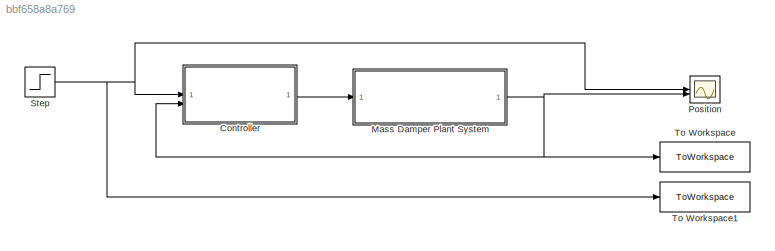
MODEL slx_bbf658a8a769
KIND model
CONFIG AbsTol = auto
CONFIG EnableMultiTasking = off
CONFIG FixedStep = auto
CONFIG MaxStep = 0.01
CONFIG MinStep = auto
CONFIG RelTol = 1e-3
CONFIG SampleTimeConstraint = Unconstrained
CONFIG SolverName = VariableStepAuto
CONFIG StartTime = 0.0
CONFIG StopTime = 10
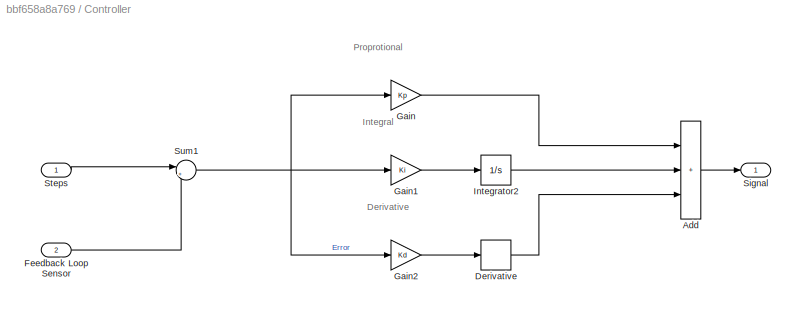
BLOCK [SubSystem] Controller
BLOCK [Sum] Controller/Add
  IconShape = rectangular
  Inputs = +++
BLOCK [Derivative] Controller/Derivative
BLOCK [Inport] Controller/Feedback Loop Sensor
  Port = 2
BLOCK [Gain] Controller/Gain
  Gain = Kp
BLOCK [Gain] Controller/Gain1
  Gain = Ki
BLOCK [Gain] Controller/Gain2
  Gain = Kd
BLOCK [Integrator] Controller/Integrator2
BLOCK [Outport] Controller/Signal
BLOCK [Inport] Controller/Steps
BLOCK [Sum] Controller/Sum1
  Inputs = |+-
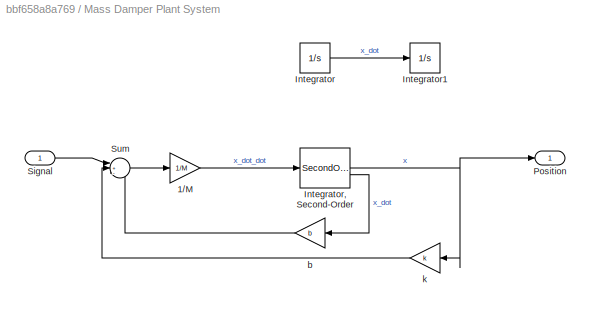
BLOCK [SubSystem] Mass Damper Plant System
BLOCK [Gain] Mass Damper Plant System/1//M
  Gain = 1/M
BLOCK [Integrator] Mass Damper Plant System/Integrator
BLOCK [SecondOrderIntegrator] Mass Damper Plant System/Integrator, Second-Order
BLOCK [Integrator] Mass Damper Plant System/Integrator1
BLOCK [Outport] Mass Damper Plant System/Position
BLOCK [Inport] Mass Damper Plant System/Signal
BLOCK [Sum] Mass Damper Plant System/Sum
  Inputs = |+--
BLOCK [Gain] Mass Damper Plant System/b
  Gain = b
  NameLocation = top
BLOCK [Gain] Mass Damper Plant System/k
  Gain = k
  NameLocation = top
BLOCK [Scope] Position
  ActiveDisplayYMaximum = 12.309637431082237
  ActiveDisplayYMinimum = -2.1778919651832895
  Floating = off
  GraphicalSettings = {"Style":{"BackgroundColor":[0.12941176470588237,0.12941176470588237,0.12941176470588237],"AxesColor":[0.07058823529411765,0.07058823529411765,0.07058823529411765],"LabelsColor":[0.8509803921568627,0.8509803921568627,0.8509803921568627],"PreserveColors":false,"Visible":[true,true],"LineStyle":["-","-"],"LineWidth":[1.5,1.5],"BarWidth":[0.9,0.9],"LineColor":["auto","auto"],"LineFaceAlpha":[1,1],"Li...<+2140ch>
  MultipleDisplayCache = [{"MaxYLimMag":11.826554609196346,"MaxYLimReal":12.309637431082237,"MinYLimMag":0,"MinYLimReal":-2.1778919651832895,"PlotAsMagnitudePhase":false,"ShowGrid":true,"ShowLegend":true,"Title":"%<SignalLabel>","YLabel":""}]
  NumInputPorts = 2
  ScopeFrameLocation = window
  ShowLegend = on
  WasSavedAsWebScope = on
  WindowPosition = [1.000000,-460.000000,1920.000000,1008.000000,]
BLOCK [Step] Step
  After = 10
  SampleTime = 0
BLOCK [ToWorkspace] To Workspace
  FixptAsFi = on
  MaxDataPoints = inf
  SampleTime = -1
  SaveFormat = Timeseries
  VariableName = IN
BLOCK [ToWorkspace] To Workspace1
  FixptAsFi = on
  MaxDataPoints = inf
  SampleTime = -1
  SaveFormat = Timeseries
  VariableName = OUT
ANNOTATION Controller: Derivative
ANNOTATION Controller: Integral
ANNOTATION Controller: Proprotional
LINE Controller/Add:1 -> Controller/Signal:1
LINE Controller/Derivative:1 -> Controller/Add:3
LINE Controller/Feedback Loop Sensor:1 -> Controller/Sum1:2
LINE Controller/Gain1:1 -> Controller/Integrator2:1
LINE Controller/Gain2:1 -> Controller/Derivative:1
LINE Controller/Gain:1 -> Controller/Add:1
LINE Controller/Integrator2:1 -> Controller/Add:2
LINE Controller/Steps:1 -> Controller/Sum1:1
NET Controller/Sum1:1 -> Controller/Gain1:1, Controller/Gain2:1, Controller/Gain:1
LINE Controller:1 -> Mass Damper Plant System:1
LINE Mass Damper Plant System/1//M:1 -> Mass Damper Plant System/Integrator, Second-Order:1
NET Mass Damper Plant System/Integrator, Second-Order:1 -> Mass Damper Plant System/Position:1, Mass Damper Plant System/k:1
LINE Mass Damper Plant System/Integrator, Second-Order:2 -> Mass Damper Plant System/b:1
LINE Mass Damper Plant System/Integrator:1 -> Mass Damper Plant System/Integrator1:1
LINE Mass Damper Plant System/Signal:1 -> Mass Damper Plant System/Sum:1
LINE Mass Damper Plant System/Sum:1 -> Mass Damper Plant System/1//M:1
LINE Mass Damper Plant System/b:1 -> Mass Damper Plant System/Sum:3
LINE Mass Damper Plant System/k:1 -> Mass Damper Plant System/Sum:2
NET Mass Damper Plant System:1 -> Controller:2, Position:2, To Workspace:1
NET Step:1 -> Controller:1, Position:1, To Workspace1:1
note: NET lines group one-source signal fan-out (src -> all destinations, sorted); 1:1 wires keep LINE
